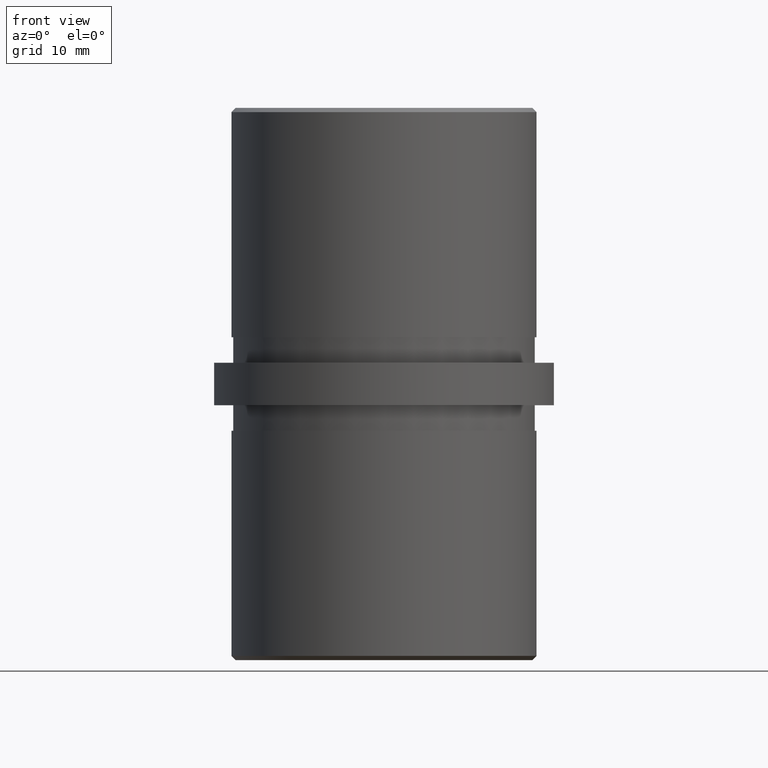
[diagram: clean part render]
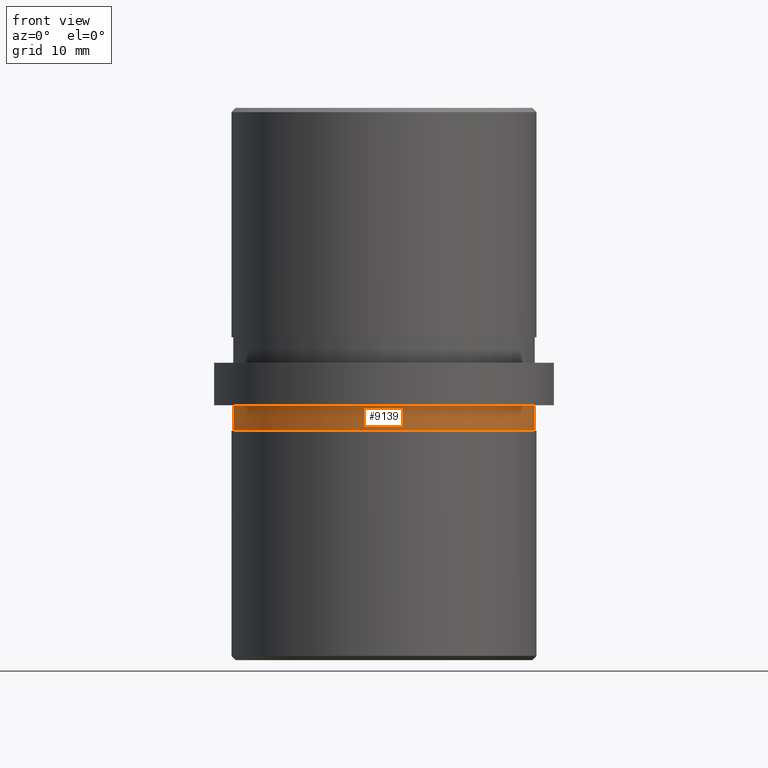
[diagram: same view with one face highlighted and labeled with its STEP entity id]
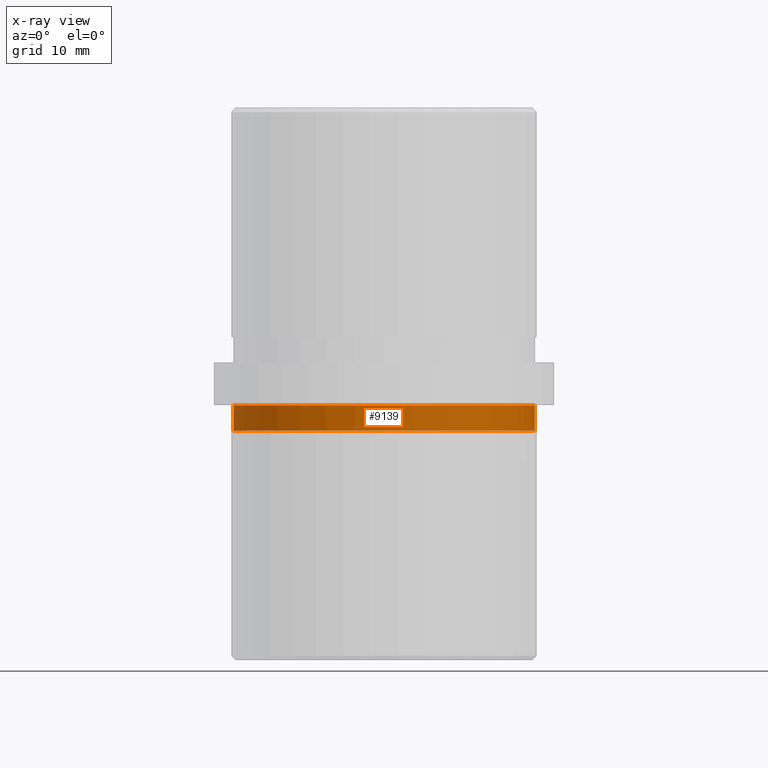
[diagram: x-ray of the same camera — body ghosted, the highlighted face saturated]
A machine part, front view. The second image highlights one B-rep face of the part: STEP entity #9139.
The next image is the same camera in x-ray: the body ghosted, the highlighted face saturated — about 0% of this face is hidden behind the body in this view.
In plain terms, the highlighted cylindrical surface (partial cylindrical patch) has radius 17.75 mm, axis along (-0, -0, 1).
Its self-contained STEP definition (entity closure, byte-faithful):
#44 = DIRECTION ( 'NONE',  ( -0.0000000000000000000, -0.0000000000000000000, 1.000000000000000000 ) ) ;
#104 = FACE_OUTER_BOUND ( 'NONE', #16760, .T. ) ;
#1064 = CARTESIAN_POINT ( 'NONE',  ( -17.75000000000000400, 0.0000000000000000000, -5.500000000000000000 ) ) ;
#1114 = DIRECTION ( 'NONE',  ( 1.000000000000000000, 0.0000000000000000000, 0.0000000000000000000 ) ) ;
#1416 = CARTESIAN_POINT ( 'NONE',  ( 0.0000000000000000000, 0.0000000000000000000, -5.500000000000000000 ) ) ;
#2374 = AXIS2_PLACEMENT_3D ( 'NONE', #3144, #44, #15033 ) ;
#3048 = CARTESIAN_POINT ( 'NONE',  ( -17.75000000000000400, 0.0000000000000000000, -5.500000000000000000 ) ) ;
#3144 = CARTESIAN_POINT ( 'NONE',  ( 0.0000000000000000000, 0.0000000000000000000, -5.500000000000000000 ) ) ;
#3255 = DIRECTION ( 'NONE',  ( -1.000000000000000000, 0.0000000000000000000, 0.0000000000000000000 ) ) ;
#3735 = VERTEX_POINT ( 'NONE', #3048 ) ;
#4302 = CYLINDRICAL_SURFACE ( 'NONE', #17128, 17.75000000000000400 ) ;
#4309 = DIRECTION ( 'NONE',  ( -0.0000000000000000000, -0.0000000000000000000, 1.000000000000000000 ) ) ;
#4825 = VERTEX_POINT ( 'NONE', #10110 ) ;
#5107 = LINE ( 'NONE', #12237, #10949 ) ;
#6685 = AXIS2_PLACEMENT_3D ( 'NONE', #7938, #16477, #1114 ) ;
#7360 = ORIENTED_EDGE ( 'NONE', *, *, #11485, .F. ) ;
#7938 = CARTESIAN_POINT ( 'NONE',  ( 0.0000000000000000000, 0.0000000000000000000, -2.500000000000000000 ) ) ;
#8488 = ORIENTED_EDGE ( 'NONE', *, *, #15109, .F. ) ;
#9139 = ADVANCED_FACE ( 'NONE', ( #104 ), #4302, .T. ) ;
#9456 = VECTOR ( 'NONE', #4309, 1000.000000000000000 ) ;
#10002 = ORIENTED_EDGE ( 'NONE', *, *, #10463, .T. ) ;
#10110 = CARTESIAN_POINT ( 'NONE',  ( -17.75000000000000400, 0.0000000000000000000, -2.500000000000000000 ) ) ;
#10463 = EDGE_CURVE ( 'NONE', #20721, #14520, #5107, .T. ) ;
#10680 = ORIENTED_EDGE ( 'NONE', *, *, #12303, .T. ) ;
#10949 = VECTOR ( 'NONE', #20870, 1000.000000000000000 ) ;
#11485 = EDGE_CURVE ( 'NONE', #3735, #4825, #21993, .T. ) ;
#12237 = CARTESIAN_POINT ( 'NONE',  ( 17.75000000000000400, -2.173748068486552000E-015, -5.500000000000000000 ) ) ;
#12303 = EDGE_CURVE ( 'NONE', #3735, #20721, #20095, .T. ) ;
#13651 = CARTESIAN_POINT ( 'NONE',  ( 17.75000000000000400, -2.173748068486552000E-015, -5.500000000000000000 ) ) ;
#14520 = VERTEX_POINT ( 'NONE', #17153 ) ;
#14731 = CIRCLE ( 'NONE', #6685, 17.75000000000000400 ) ;
#15033 = DIRECTION ( 'NONE',  ( 1.000000000000000000, 0.0000000000000000000, 0.0000000000000000000 ) ) ;
#15109 = EDGE_CURVE ( 'NONE', #4825, #14520, #14731, .T. ) ;
#16477 = DIRECTION ( 'NONE',  ( -0.0000000000000000000, -0.0000000000000000000, 1.000000000000000000 ) ) ;
#16760 = EDGE_LOOP ( 'NONE', ( #10680, #10002, #8488, #7360 ) ) ;
#16857 = DIRECTION ( 'NONE',  ( -0.0000000000000000000, -0.0000000000000000000, 1.000000000000000000 ) ) ;
#17128 = AXIS2_PLACEMENT_3D ( 'NONE', #1416, #16857, #3255 ) ;
#17153 = CARTESIAN_POINT ( 'NONE',  ( 17.75000000000000400, -2.173748068486552000E-015, -2.500000000000000000 ) ) ;
#20095 = CIRCLE ( 'NONE', #2374, 17.75000000000000400 ) ;
#20721 = VERTEX_POINT ( 'NONE', #13651 ) ;
#20870 = DIRECTION ( 'NONE',  ( -0.0000000000000000000, -0.0000000000000000000, 1.000000000000000000 ) ) ;
#21993 = LINE ( 'NONE', #1064, #9456 ) ;